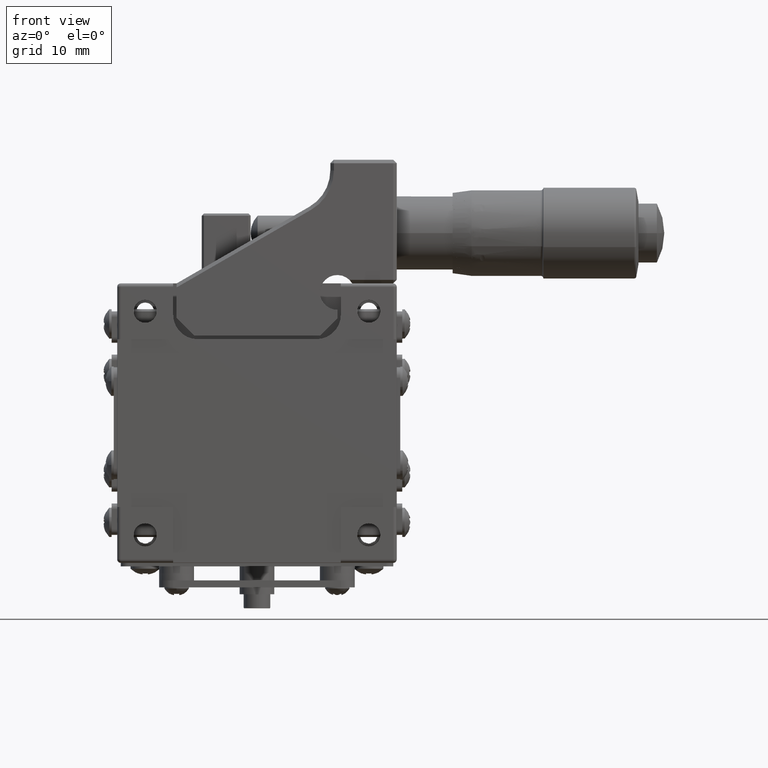
[diagram: clean part render]
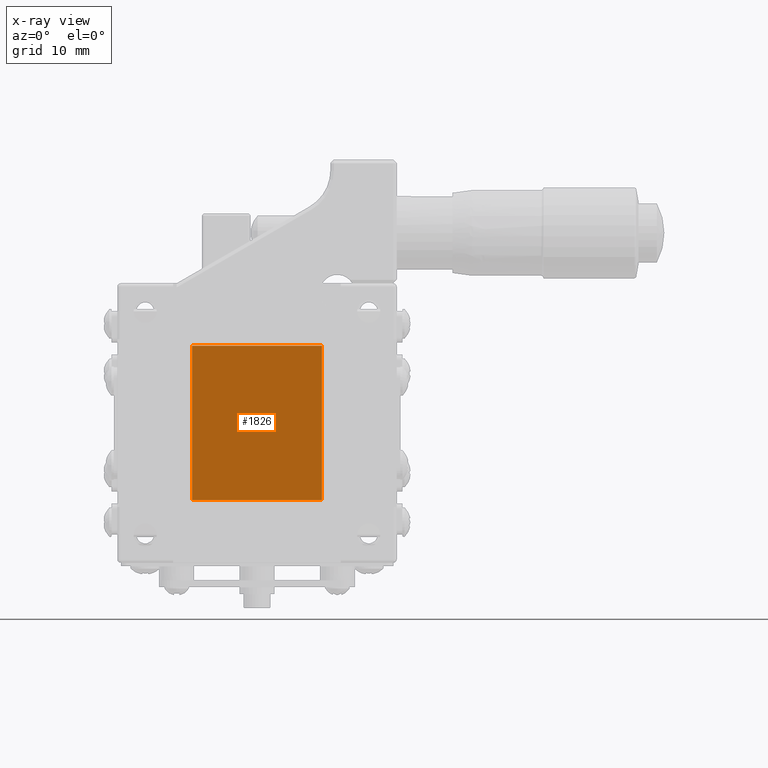
[diagram: x-ray — body ghosted, one internal face saturated and labeled with its STEP entity id]
A machine part, front view, then the same camera in x-ray: the body is ghosted and one INTERNAL B-rep face — a face not visible from any outside direction — is saturated and labeled: STEP entity #1826.
In plain terms, the highlighted planar face has unit normal (-0, 1, 0).
Its self-contained STEP definition (entity closure, byte-faithful):
#15 = EDGE_CURVE ( 'NONE', #13770, #28134, #19688, .T. ) ;
#302 = CARTESIAN_POINT ( 'NONE',  ( -12.39149875411026080, 4.690954773869339789, 20.00000000000000000 ) ) ;
#331 = LINE ( 'NONE', #30395, #46547 ) ;
#1826 = ADVANCED_FACE ( 'NONE', ( #41410 ), #22749, .F. ) ;
#2965 = ORIENTED_EDGE ( 'NONE', *, *, #15, .F. ) ;
#3080 = EDGE_CURVE ( 'NONE', #13770, #8988, #20532, .T. ) ;
#5176 = VERTEX_POINT ( 'NONE', #31048 ) ;
#8302 = DIRECTION ( 'NONE',  ( 0.000000000000000000, 0.000000000000000000, -1.000000000000000000 ) ) ;
#8795 = CARTESIAN_POINT ( 'NONE',  ( 6.182676866896409607, 4.690954773869339789, -11.05000000000000071 ) ) ;
#8988 = VERTEX_POINT ( 'NONE', #8795 ) ;
#9126 = VECTOR ( 'NONE', #15473, 1000.000000000000000 ) ;
#11364 = DIRECTION ( 'NONE',  ( 1.000000000000000000, 0.000000000000000000, 0.000000000000000000 ) ) ;
#13044 = ORIENTED_EDGE ( 'NONE', *, *, #40820, .F. ) ;
#13770 = VERTEX_POINT ( 'NONE', #25659 ) ;
#14215 = CARTESIAN_POINT ( 'NONE',  ( -23.10441094360700021, 4.690954773869339789, 11.05000000000000071 ) ) ;
#15473 = DIRECTION ( 'NONE',  ( 0.000000000000000000, 0.000000000000000000, 1.000000000000000000 ) ) ;
#16815 = DIRECTION ( 'NONE',  ( 1.000000000000000000, 0.000000000000000000, 0.000000000000000000 ) ) ;
#17940 = LINE ( 'NONE', #14215, #24990 ) ;
#18190 = DIRECTION ( 'NONE',  ( 1.000000000000000000, 0.000000000000000000, 0.000000000000000000 ) ) ;
#19132 = ORIENTED_EDGE ( 'NONE', *, *, #42811, .F. ) ;
#19688 = LINE ( 'NONE', #302, #9126 ) ;
#20321 = EDGE_LOOP ( 'NONE', ( #29178, #19132, #13044, #2965 ) ) ;
#20532 = LINE ( 'NONE', #38918, #29790 ) ;
#22510 = DIRECTION ( 'NONE',  ( -0.000000000000000000, 1.000000000000000000, 0.000000000000000000 ) ) ;
#22749 = PLANE ( 'NONE',  #40027 ) ;
#24990 = VECTOR ( 'NONE', #18190, 1000.000000000000000 ) ;
#25659 = CARTESIAN_POINT ( 'NONE',  ( -12.39149875411026080, 4.690954773869339789, -11.05000000000000071 ) ) ;
#28134 = VERTEX_POINT ( 'NONE', #45307 ) ;
#29178 = ORIENTED_EDGE ( 'NONE', *, *, #3080, .T. ) ;
#29790 = VECTOR ( 'NONE', #16815, 1000.000000000000000 ) ;
#30395 = CARTESIAN_POINT ( 'NONE',  ( 6.182676866896399837, 4.690954773869339789, 20.00000000000000000 ) ) ;
#31048 = CARTESIAN_POINT ( 'NONE',  ( 6.182676866896409607, 4.690954773869339789, 11.05000000000000071 ) ) ;
#38918 = CARTESIAN_POINT ( 'NONE',  ( -23.10441094360700021, 4.690954773869339789, -11.05000000000000071 ) ) ;
#40027 = AXIS2_PLACEMENT_3D ( 'NONE', #48632, #22510, #11364 ) ;
#40820 = EDGE_CURVE ( 'NONE', #28134, #5176, #17940, .T. ) ;
#41410 = FACE_OUTER_BOUND ( 'NONE', #20321, .T. ) ;
#42811 = EDGE_CURVE ( 'NONE', #5176, #8988, #331, .T. ) ;
#45307 = CARTESIAN_POINT ( 'NONE',  ( -12.39149875411026080, 4.690954773869339789, 11.05000000000000071 ) ) ;
#46547 = VECTOR ( 'NONE', #8302, 1000.000000000000000 ) ;
#48632 = CARTESIAN_POINT ( 'NONE',  ( -23.10441094360700021, 4.690954773869339789, 11.05000000000000071 ) ) ;